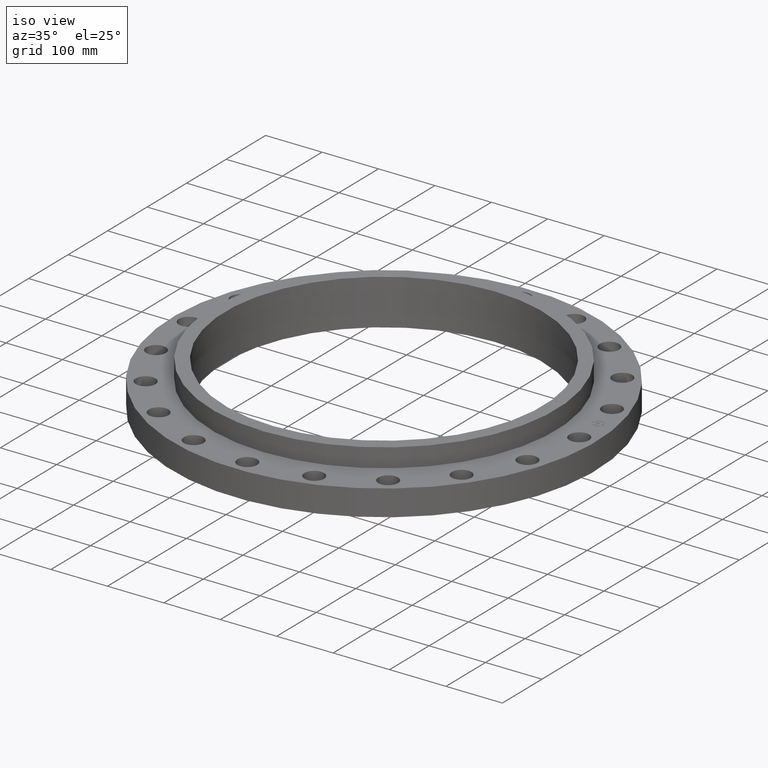
[diagram: clean part render]
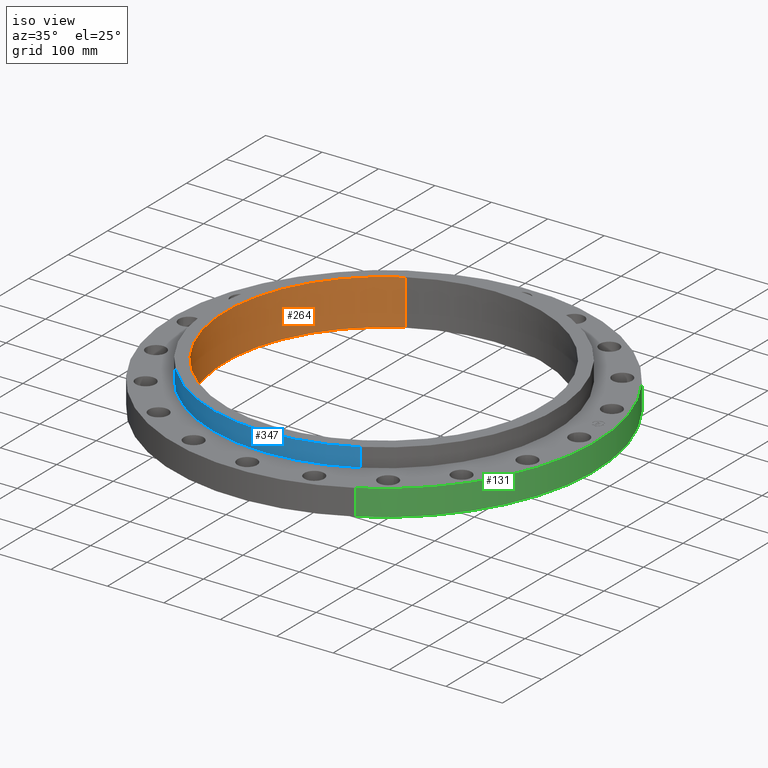
[diagram: same view with three faces highlighted in distinct colors, each labeled with its STEP entity id]
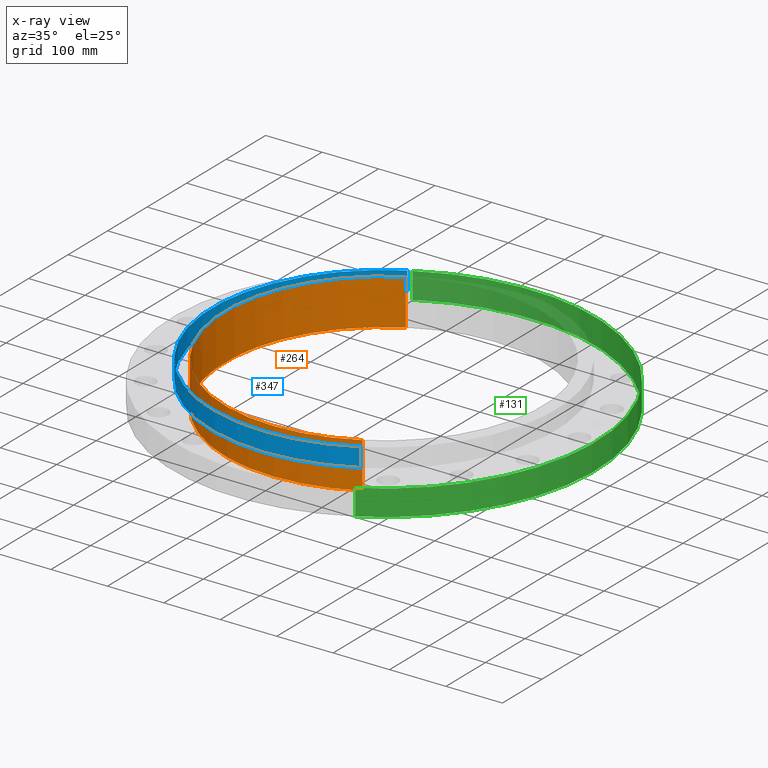
[diagram: x-ray of the same camera — body ghosted, the three highlighted faces saturated]
A machine part, iso view with three faces highlighted in distinct colors.
The next image is the same camera in x-ray (body ghosted, the three faces saturated) — at least one of them is partly hidden behind the body in this view.
Their STEP definitions:

[orange] entity #264 — the highlighted cylindrical surface (partial cylindrical patch) has radius 281.813 mm, axis along (0, 0, 1).
#226=AXIS2_PLACEMENT_3D('Circle Axis2P3D',#224,#225,$) ;
#237=AXIS2_PLACEMENT_3D('Cylinder Axis2P3D',#234,#235,#236) ;
#255=AXIS2_PLACEMENT_3D('Circle Axis2P3D',#253,#254,$) ;
#219=CARTESIAN_POINT('Vertex',(5.31922635083,-9.73677852421,-0.0625000000003)) ;
#221=CARTESIAN_POINT('Vertex',(-5.31922635083,9.73677852421,-0.0625000000003)) ;
#224=CARTESIAN_POINT('Axis2P3D Location',(0.,0.,-0.0625000000002)) ;
#234=CARTESIAN_POINT('Axis2P3D Location',(0.,0.,1.53125000001)) ;
#239=CARTESIAN_POINT('Line Origine',(5.31922635083,-9.73677852421,1.53125000001)) ;
#243=CARTESIAN_POINT('Vertex',(5.31922635083,-9.73677852421,3.12500000001)) ;
#246=CARTESIAN_POINT('Line Origine',(-5.31922635083,9.73677852421,1.53125000001)) ;
#250=CARTESIAN_POINT('Vertex',(-5.31922635083,9.73677852421,3.12500000001)) ;
#253=CARTESIAN_POINT('Axis2P3D Location',(0.,0.,3.12500000001)) ;
#225=DIRECTION('Axis2P3D Direction',(0.,0.,0.0393700787402)) ;
#235=DIRECTION('Axis2P3D Direction',(0.,0.,0.0393700787402)) ;
#236=DIRECTION('Axis2P3D XDirection',(0.0188750212049,-0.0345504945626,0.)) ;
#240=DIRECTION('Vector Direction',(0.,0.,0.0393700787402)) ;
#247=DIRECTION('Vector Direction',(0.,0.,0.0393700787402)) ;
#254=DIRECTION('Axis2P3D Direction',(0.,0.,0.0393700787402)) ;
#241=VECTOR('Line Direction',#240,0.0393700787402) ;
#248=VECTOR('Line Direction',#247,0.0393700787402) ;
#259=ORIENTED_EDGE('',*,*,#245,.T.) ;
#260=ORIENTED_EDGE('',*,*,#228,.F.) ;
#261=ORIENTED_EDGE('',*,*,#252,.F.) ;
#262=ORIENTED_EDGE('',*,*,#257,.T.) ;
#264=ADVANCED_FACE('PartBody',(#263),#238,.F.) ;
#227=CIRCLE('generated circle',#226,11.095) ;
#256=CIRCLE('generated circle',#255,11.095) ;
#238=CYLINDRICAL_SURFACE('generated cylinder',#237,11.095) ;
#228=EDGE_CURVE('',#222,#220,#227,.T.) ;
#245=EDGE_CURVE('',#244,#220,#242,.F.) ;
#252=EDGE_CURVE('',#251,#222,#249,.F.) ;
#257=EDGE_CURVE('',#251,#244,#256,.T.) ;
#258=EDGE_LOOP('',(#259,#260,#261,#262)) ;
#263=FACE_OUTER_BOUND('',#258,.T.) ;
#242=LINE('Line',#239,#241) ;
#249=LINE('Line',#246,#248) ;
#220=VERTEX_POINT('',#219) ;
#222=VERTEX_POINT('',#221) ;
#244=VERTEX_POINT('',#243) ;
#251=VERTEX_POINT('',#250) ;

[blue] entity #347 — the highlighted cylindrical surface (partial cylindrical patch) has radius 304.8 mm, axis along (0, 0, 1).
#293=AXIS2_PLACEMENT_3D('Circle Axis2P3D',#291,#292,$) ;
#308=AXIS2_PLACEMENT_3D('Cylinder Axis2P3D',#305,#306,#307) ;
#338=AXIS2_PLACEMENT_3D('Circle Axis2P3D',#336,#337,$) ;
#286=CARTESIAN_POINT('Vertex',(5.75310646327,-10.5309907427,3.12500000001)) ;
#288=CARTESIAN_POINT('Vertex',(-5.75310646327,10.5309907427,3.12500000001)) ;
#291=CARTESIAN_POINT('Axis2P3D Location',(0.,0.,3.12500000001)) ;
#305=CARTESIAN_POINT('Axis2P3D Location',(0.,0.,1.53125000001)) ;
#310=CARTESIAN_POINT('Line Origine',(-5.75310646327,10.5309907427,2.46850000001)) ;
#314=CARTESIAN_POINT('Vertex',(-5.75310646327,10.5309907427,1.81200000001)) ;
#317=CARTESIAN_POINT('Line Origine',(5.75310646327,-10.5309907427,2.46850000001)) ;
#321=CARTESIAN_POINT('Vertex',(5.75310646327,-10.5309907427,1.81200000001)) ;
#336=CARTESIAN_POINT('Axis2P3D Location',(0.,0.,1.81200000001)) ;
#292=DIRECTION('Axis2P3D Direction',(0.,0.,0.0393700787402)) ;
#306=DIRECTION('Axis2P3D Direction',(0.,0.,0.0393700787402)) ;
#307=DIRECTION('Axis2P3D XDirection',(-0.0188750212049,0.0345504945626,0.)) ;
#311=DIRECTION('Vector Direction',(0.,0.,0.0393700787402)) ;
#318=DIRECTION('Vector Direction',(0.,0.,0.0393700787402)) ;
#337=DIRECTION('Axis2P3D Direction',(0.,0.,0.0393700787402)) ;
#312=VECTOR('Line Direction',#311,0.0393700787402) ;
#319=VECTOR('Line Direction',#318,0.0393700787402) ;
#342=ORIENTED_EDGE('',*,*,#323,.T.) ;
#343=ORIENTED_EDGE('',*,*,#295,.F.) ;
#344=ORIENTED_EDGE('',*,*,#316,.F.) ;
#345=ORIENTED_EDGE('',*,*,#340,.T.) ;
#347=ADVANCED_FACE('PartBody',(#346),#309,.T.) ;
#294=CIRCLE('generated circle',#293,12.) ;
#339=CIRCLE('generated circle',#338,12.) ;
#309=CYLINDRICAL_SURFACE('generated cylinder',#308,12.) ;
#295=EDGE_CURVE('',#289,#287,#294,.T.) ;
#316=EDGE_CURVE('',#315,#289,#313,.T.) ;
#323=EDGE_CURVE('',#322,#287,#320,.T.) ;
#340=EDGE_CURVE('',#315,#322,#339,.T.) ;
#341=EDGE_LOOP('',(#342,#343,#344,#345)) ;
#346=FACE_OUTER_BOUND('',#341,.T.) ;
#313=LINE('Line',#310,#312) ;
#320=LINE('Line',#317,#319) ;
#287=VERTEX_POINT('',#286) ;
#289=VERTEX_POINT('',#288) ;
#315=VERTEX_POINT('',#314) ;
#322=VERTEX_POINT('',#321) ;

[green] entity #131 — the highlighted cylindrical surface (partial cylindrical patch) has radius 374.65 mm, axis along (0, 0, 1).
#95=AXIS2_PLACEMENT_3D('Cylinder Axis2P3D',#92,#93,#94) ;
#108=AXIS2_PLACEMENT_3D('Circle Axis2P3D',#106,#107,$) ;
#122=AXIS2_PLACEMENT_3D('Circle Axis2P3D',#120,#121,$) ;
#92=CARTESIAN_POINT('Axis2P3D Location',(0.,0.,1.53125000001)) ;
#97=CARTESIAN_POINT('Line Origine',(-7.07152669444,12.9443427879,0.906000000004)) ;
#101=CARTESIAN_POINT('Vertex',(-7.07152669444,12.9443427879,-4.50383387627E-014)) ;
#103=CARTESIAN_POINT('Vertex',(-7.07152669444,12.9443427879,1.81200000001)) ;
#106=CARTESIAN_POINT('Axis2P3D Location',(0.,0.,1.81200000001)) ;
#110=CARTESIAN_POINT('Vertex',(7.07152669444,-12.9443427879,1.81200000001)) ;
#113=CARTESIAN_POINT('Line Origine',(7.07152669444,-12.9443427879,0.906000000004)) ;
#117=CARTESIAN_POINT('Vertex',(7.07152669444,-12.9443427879,-4.50383387627E-014)) ;
#120=CARTESIAN_POINT('Axis2P3D Location',(0.,0.,-4.50383387627E-014)) ;
#93=DIRECTION('Axis2P3D Direction',(0.,0.,0.0393700787402)) ;
#94=DIRECTION('Axis2P3D XDirection',(-0.0188750212049,0.0345504945626,0.)) ;
#98=DIRECTION('Vector Direction',(0.,0.,0.0393700787402)) ;
#107=DIRECTION('Axis2P3D Direction',(0.,0.,0.0393700787402)) ;
#114=DIRECTION('Vector Direction',(0.,0.,0.0393700787402)) ;
#121=DIRECTION('Axis2P3D Direction',(0.,0.,0.0393700787402)) ;
#99=VECTOR('Line Direction',#98,0.0393700787402) ;
#115=VECTOR('Line Direction',#114,0.0393700787402) ;
#126=ORIENTED_EDGE('',*,*,#105,.T.) ;
#127=ORIENTED_EDGE('',*,*,#112,.F.) ;
#128=ORIENTED_EDGE('',*,*,#119,.F.) ;
#129=ORIENTED_EDGE('',*,*,#124,.T.) ;
#131=ADVANCED_FACE('PartBody',(#130),#96,.T.) ;
#109=CIRCLE('generated circle',#108,14.7500000001) ;
#123=CIRCLE('generated circle',#122,14.7500000001) ;
#96=CYLINDRICAL_SURFACE('generated cylinder',#95,14.7500000001) ;
#105=EDGE_CURVE('',#102,#104,#100,.T.) ;
#112=EDGE_CURVE('',#111,#104,#109,.T.) ;
#119=EDGE_CURVE('',#118,#111,#116,.T.) ;
#124=EDGE_CURVE('',#118,#102,#123,.T.) ;
#125=EDGE_LOOP('',(#126,#127,#128,#129)) ;
#130=FACE_OUTER_BOUND('',#125,.T.) ;
#100=LINE('Line',#97,#99) ;
#116=LINE('Line',#113,#115) ;
#102=VERTEX_POINT('',#101) ;
#104=VERTEX_POINT('',#103) ;
#111=VERTEX_POINT('',#110) ;
#118=VERTEX_POINT('',#117) ;